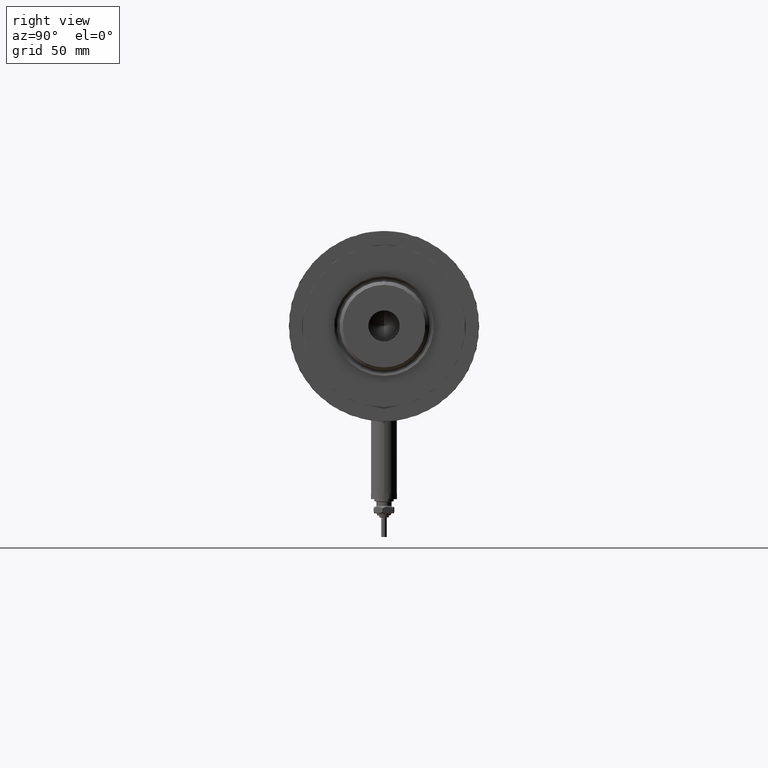
[diagram: clean part render]
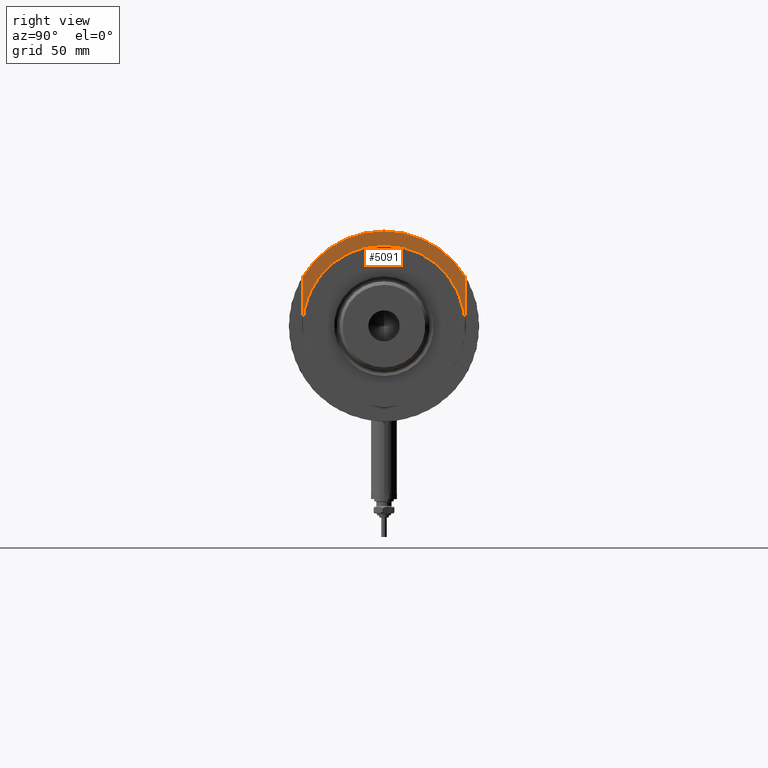
[diagram: same view with one face highlighted and labeled with its STEP entity id]
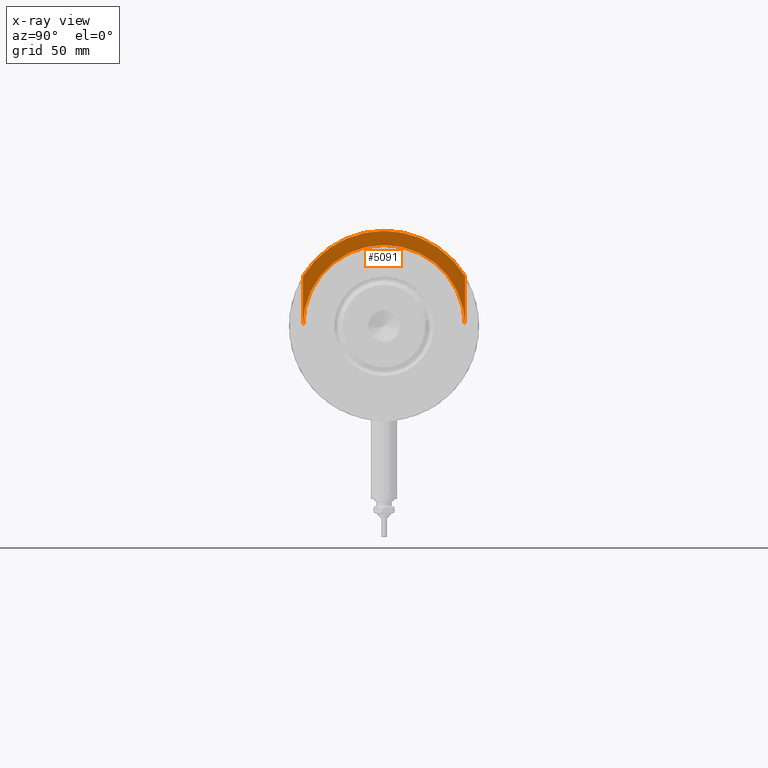
[diagram: x-ray of the same camera — body ghosted, the highlighted face saturated]
A machine part, right view. The second image highlights one B-rep face of the part: STEP entity #5091.
The next image is the same camera in x-ray: the body ghosted, the highlighted face saturated — about 0% of this face is hidden behind the body in this view.
In plain terms, the highlighted planar face has unit normal (1, 0, -0).
Its self-contained STEP definition (entity closure, byte-faithful):
#27 = ORIENTED_EDGE ( 'NONE', *, *, #2595, .T. ) ;
#273 = DIRECTION ( 'NONE',  ( 1.000000000000000000, 0.000000000000000000, 0.000000000000000000 ) ) ;
#380 = CIRCLE ( 'NONE', #3290, 44.00000000000000000 ) ;
#451 = PLANE ( 'NONE',  #936 ) ;
#481 = AXIS2_PLACEMENT_3D ( 'NONE', #5656, #5187, #2892 ) ;
#708 = ORIENTED_EDGE ( 'NONE', *, *, #1597, .T. ) ;
#808 = LINE ( 'NONE', #2209, #3768 ) ;
#811 = VERTEX_POINT ( 'NONE', #1529 ) ;
#906 = VERTEX_POINT ( 'NONE', #3603 ) ;
#936 = AXIS2_PLACEMENT_3D ( 'NONE', #4276, #3758, #2313 ) ;
#1529 = CARTESIAN_POINT ( 'NONE',  ( -23.01629857296780557, -37.50000000000000000, 27.89999999999999858 ) ) ;
#1577 = ORIENTED_EDGE ( 'NONE', *, *, #1698, .F. ) ;
#1579 = EDGE_CURVE ( 'NONE', #4978, #811, #4483, .T. ) ;
#1597 = EDGE_CURVE ( 'NONE', #4947, #906, #380, .T. ) ;
#1698 = EDGE_CURVE ( 'NONE', #4947, #4217, #808, .T. ) ;
#1741 = AXIS2_PLACEMENT_3D ( 'NONE', #2035, #3363, #273 ) ;
#1853 = CIRCLE ( 'NONE', #481, 37.50000000000000000 ) ;
#2035 = CARTESIAN_POINT ( 'NONE',  ( 0.000000000000000000, 0.000000000000000000, 27.89999999999999858 ) ) ;
#2058 = CIRCLE ( 'NONE', #3613, 44.00000000000000000 ) ;
#2162 = CARTESIAN_POINT ( 'NONE',  ( -23.01629857296780557, 37.50000000000000000, 27.89999999999999858 ) ) ;
#2209 = CARTESIAN_POINT ( 'NONE',  ( -23.01629857296780557, 37.50000000000000000, 27.89999999999999858 ) ) ;
#2294 = DIRECTION ( 'NONE',  ( 1.000000000000000000, 0.000000000000000000, 0.000000000000000000 ) ) ;
#2313 = DIRECTION ( 'NONE',  ( 1.000000000000000000, 0.000000000000000000, -0.000000000000000000 ) ) ;
#2595 = EDGE_CURVE ( 'NONE', #4978, #4062, #1853, .T. ) ;
#2662 = CARTESIAN_POINT ( 'NONE',  ( 0.000000000000000000, -37.50000000000000000, 27.89999999999999858 ) ) ;
#2690 = EDGE_CURVE ( 'NONE', #4062, #4217, #5724, .T. ) ;
#2876 = ORIENTED_EDGE ( 'NONE', *, *, #2690, .T. ) ;
#2892 = DIRECTION ( 'NONE',  ( 1.000000000000000000, 0.000000000000000000, 0.000000000000000000 ) ) ;
#2941 = CARTESIAN_POINT ( 'NONE',  ( 0.000000000000000000, 37.50000000000000000, 27.89999999999999858 ) ) ;
#3133 = ORIENTED_EDGE ( 'NONE', *, *, #4442, .T. ) ;
#3290 = AXIS2_PLACEMENT_3D ( 'NONE', #5019, #4048, #5419 ) ;
#3363 = DIRECTION ( 'NONE',  ( -0.000000000000000000, -0.000000000000000000, -1.000000000000000000 ) ) ;
#3562 = CARTESIAN_POINT ( 'NONE',  ( 0.000000000000000000, 0.000000000000000000, 27.89999999999999858 ) ) ;
#3566 = CARTESIAN_POINT ( 'NONE',  ( -23.01629857296780557, -37.50000000000000000, 27.89999999999999858 ) ) ;
#3603 = CARTESIAN_POINT ( 'NONE',  ( -44.00000000000000000, 0.000000000000000000, 27.89999999999999858 ) ) ;
#3613 = AXIS2_PLACEMENT_3D ( 'NONE', #3562, #5966, #2294 ) ;
#3737 = FACE_OUTER_BOUND ( 'NONE', #5441, .T. ) ;
#3758 = DIRECTION ( 'NONE',  ( 0.000000000000000000, 0.000000000000000000, 1.000000000000000000 ) ) ;
#3768 = VECTOR ( 'NONE', #5461, 1000.000000000000000 ) ;
#4048 = DIRECTION ( 'NONE',  ( 0.000000000000000000, 0.000000000000000000, 1.000000000000000000 ) ) ;
#4062 = VERTEX_POINT ( 'NONE', #5546 ) ;
#4217 = VERTEX_POINT ( 'NONE', #2941 ) ;
#4276 = CARTESIAN_POINT ( 'NONE',  ( 0.000000000000000000, 0.000000000000000000, 27.89999999999999858 ) ) ;
#4442 = EDGE_CURVE ( 'NONE', #906, #811, #2058, .T. ) ;
#4483 = LINE ( 'NONE', #3566, #4565 ) ;
#4565 = VECTOR ( 'NONE', #4572, 1000.000000000000000 ) ;
#4572 = DIRECTION ( 'NONE',  ( -1.000000000000000000, -0.000000000000000000, -0.000000000000000000 ) ) ;
#4947 = VERTEX_POINT ( 'NONE', #2162 ) ;
#4978 = VERTEX_POINT ( 'NONE', #2662 ) ;
#5019 = CARTESIAN_POINT ( 'NONE',  ( 0.000000000000000000, 0.000000000000000000, 27.89999999999999858 ) ) ;
#5091 = ADVANCED_FACE ( 'NONE', ( #3737 ), #451, .T. ) ;
#5156 = ORIENTED_EDGE ( 'NONE', *, *, #1579, .F. ) ;
#5187 = DIRECTION ( 'NONE',  ( -0.000000000000000000, -0.000000000000000000, -1.000000000000000000 ) ) ;
#5419 = DIRECTION ( 'NONE',  ( 1.000000000000000000, 0.000000000000000000, 0.000000000000000000 ) ) ;
#5441 = EDGE_LOOP ( 'NONE', ( #5156, #27, #2876, #1577, #708, #3133 ) ) ;
#5461 = DIRECTION ( 'NONE',  ( 1.000000000000000000, 0.000000000000000000, 0.000000000000000000 ) ) ;
#5546 = CARTESIAN_POINT ( 'NONE',  ( -37.50000000000000000, 4.592425496802574367E-15, 27.89999999999999858 ) ) ;
#5656 = CARTESIAN_POINT ( 'NONE',  ( 0.000000000000000000, 0.000000000000000000, 27.89999999999999858 ) ) ;
#5724 = CIRCLE ( 'NONE', #1741, 37.50000000000000000 ) ;
#5966 = DIRECTION ( 'NONE',  ( 0.000000000000000000, 0.000000000000000000, 1.000000000000000000 ) ) ;